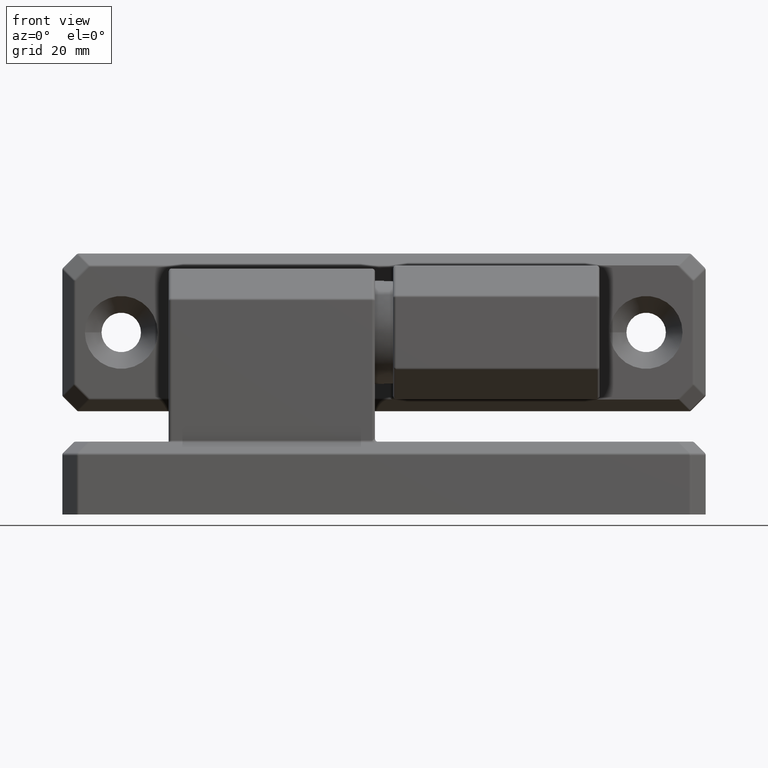
[diagram: clean part render]
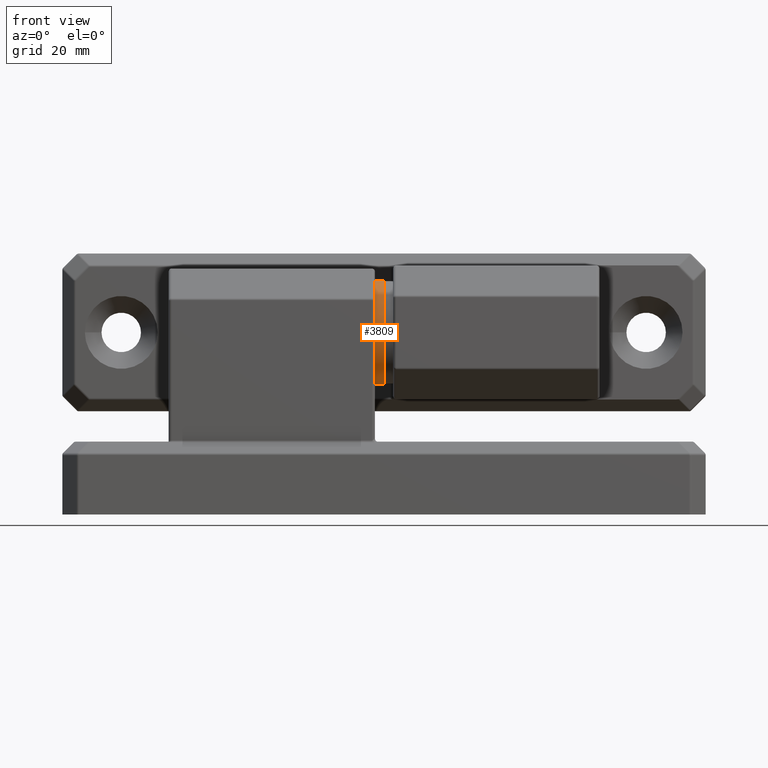
[diagram: same view with one face highlighted and labeled with its STEP entity id]
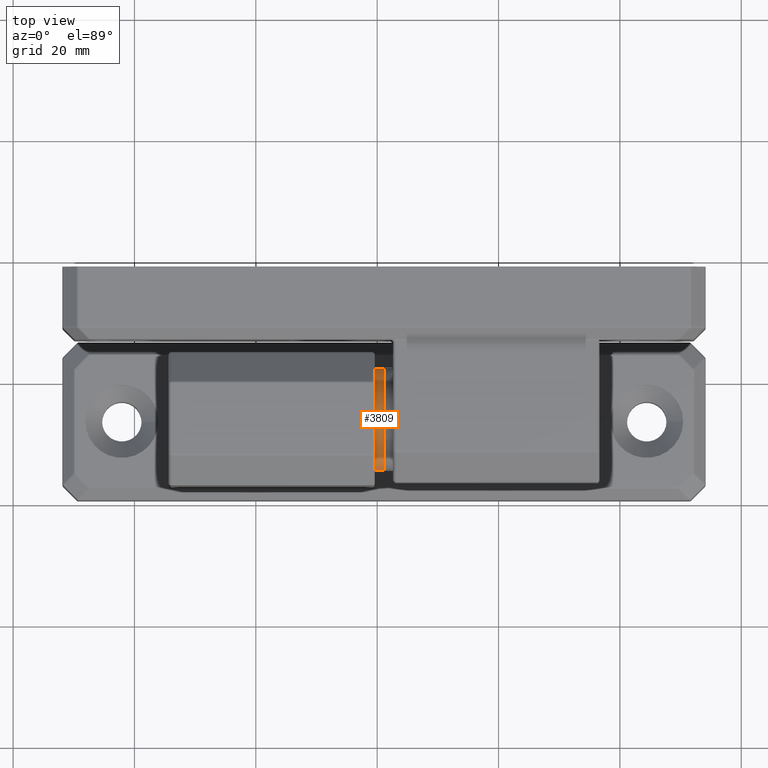
[diagram: same view with one face highlighted and labeled with its STEP entity id]
A machine part, front view. The second image highlights one B-rep face of the part: STEP entity #3809.
A second angle (top view) of the same face is appended — the face is thin or edge-on in the first view.
In plain terms, the highlighted cylindrical surface (bore or boss wall) has radius 8.5 mm, axis along (1, -0, 0).
Its self-contained STEP definition (entity closure, byte-faithful):
#65=FACE_BOUND('',#1242,.T.);
#747=CYLINDRICAL_SURFACE('',#4220,8.5);
#948=FACE_OUTER_BOUND('',#1241,.T.);
#1241=EDGE_LOOP('',(#3064));
#1242=EDGE_LOOP('',(#3065));
#1540=CIRCLE('',#4221,8.5);
#1541=CIRCLE('',#4222,8.5);
#1828=VERTEX_POINT('',#6544);
#1829=VERTEX_POINT('',#6546);
#2253=EDGE_CURVE('',#1828,#1828,#1540,.T.);
#2254=EDGE_CURVE('',#1829,#1829,#1541,.T.);
#3064=ORIENTED_EDGE('',*,*,#2253,.F.);
#3065=ORIENTED_EDGE('',*,*,#2254,.F.);
#3809=ADVANCED_FACE('',(#948,#65),#747,.T.);
#4220=AXIS2_PLACEMENT_3D('',#6543,#5155,#5156);
#4221=AXIS2_PLACEMENT_3D('',#6545,#5157,#5158);
#4222=AXIS2_PLACEMENT_3D('',#6547,#5159,#5160);
#5155=DIRECTION('center_axis',(1.,3.41607084500048E-16,0.));
#5156=DIRECTION('ref_axis',(0.,0.,1.));
#5157=DIRECTION('center_axis',(1.,3.41607084500048E-16,0.));
#5158=DIRECTION('ref_axis',(0.,0.,1.));
#5159=DIRECTION('center_axis',(-1.,-3.41607084500048E-16,0.));
#5160=DIRECTION('ref_axis',(0.,0.,1.));
#6543=CARTESIAN_POINT('Origin',(-1.49999999999999,0.,30.));
#6544=CARTESIAN_POINT('',(9.99200722162641E-15,1.55336040602532E-15,21.5));
#6545=CARTESIAN_POINT('Origin',(9.99200722162641E-15,5.12410626750073E-16,
30.));
#6546=CARTESIAN_POINT('',(-1.49999999999999,1.04094977927525E-15,21.5));
#6547=CARTESIAN_POINT('Origin',(-1.49999999999999,0.,30.));